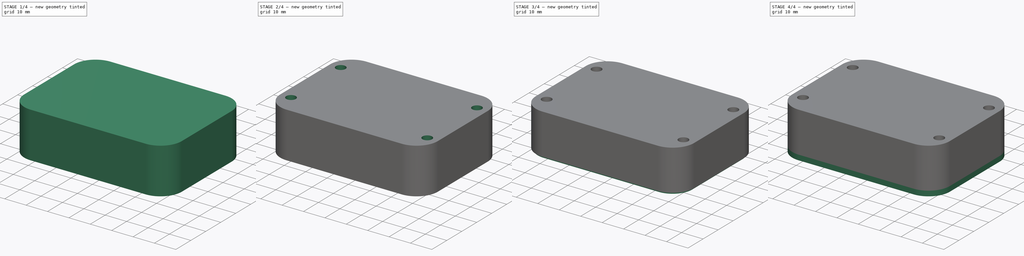
[diagram: build sequence overview — one tinted view per stage of 4, left to right]
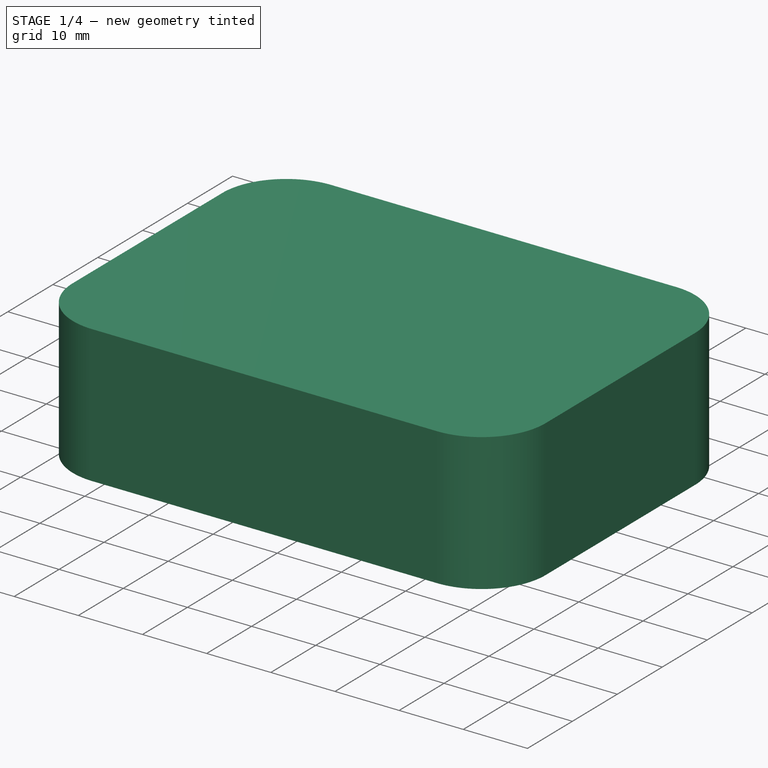
[diagram: stage 1 of 4 — iso view after this stage's code; geometry added in this stage tinted green]
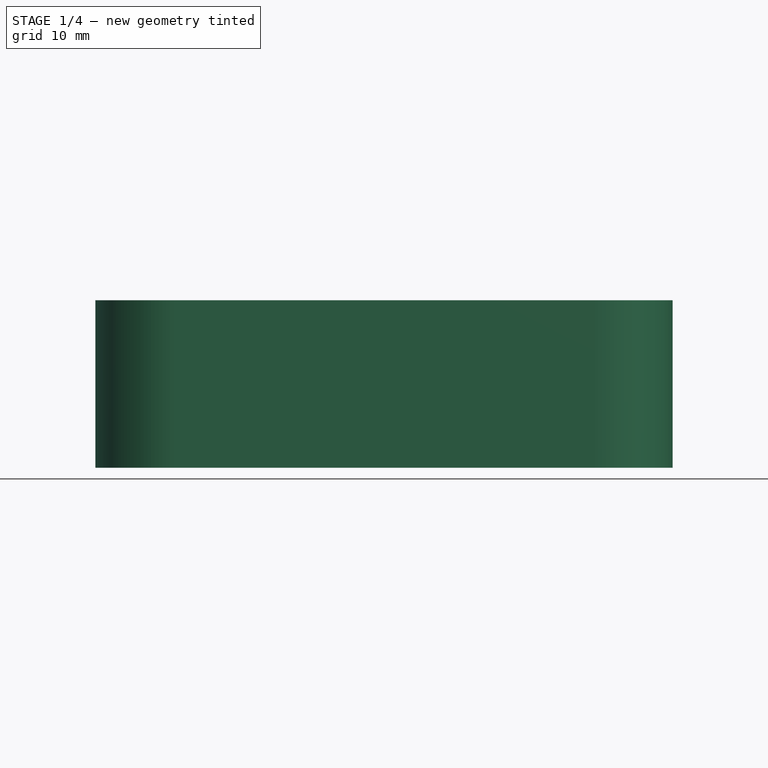
[diagram: stage 1 of 4 — front view after this stage's code; geometry added in this stage tinted green]
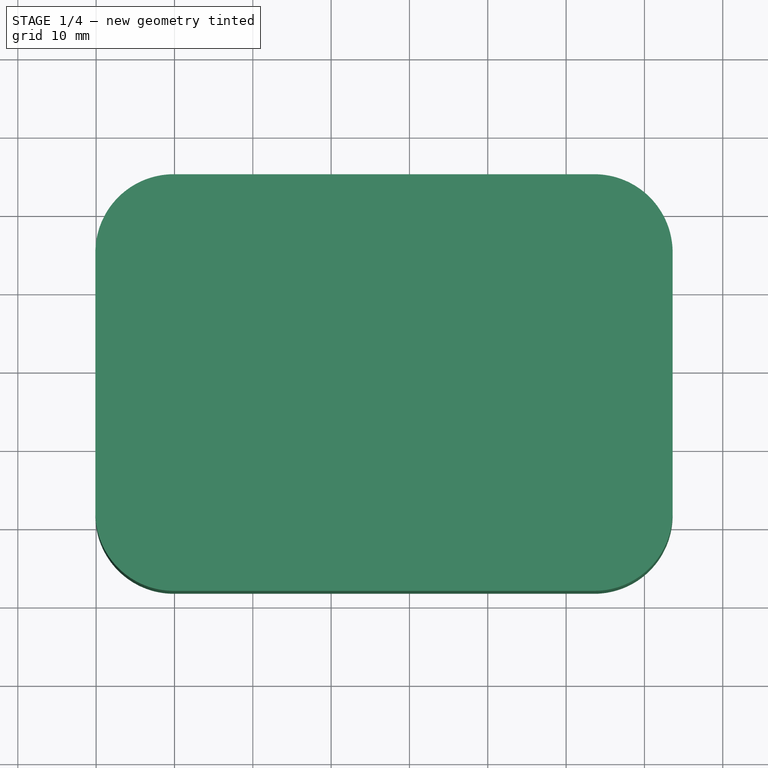
[diagram: stage 1 of 4 — top view after this stage's code; geometry added in this stage tinted green]
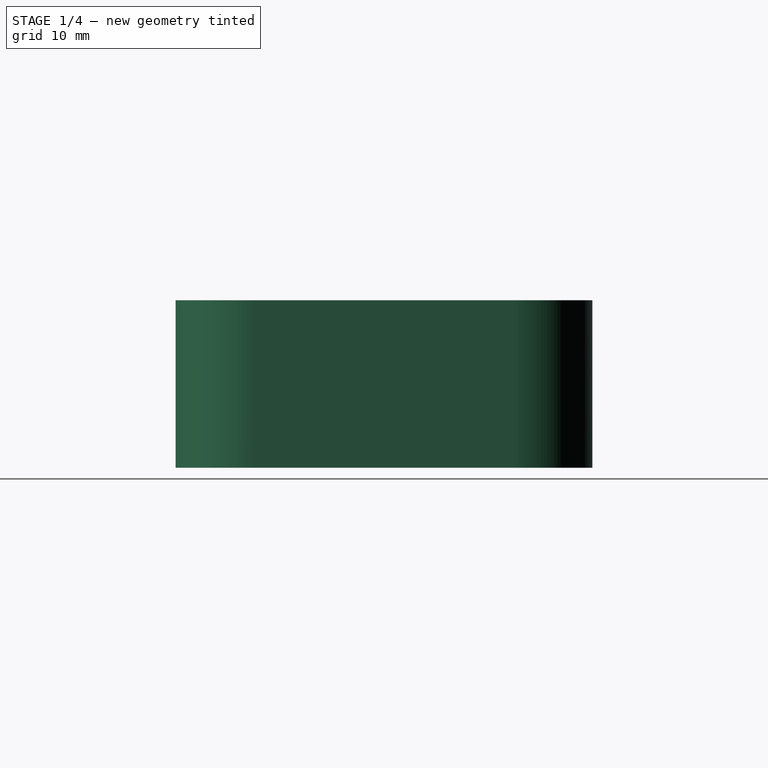
[diagram: stage 1 of 4 — right view after this stage's code; geometry added in this stage tinted green]
FCSTD DOCUMENT  (FreeCAD 0.19R24291 (Git))
Label: mail-to-telegram
License: All rights reserved
LicenseURL: http://en.wikipedia.org/wiki/All_rights_reserved
objects: Part::Feature×15, App::Link×9, App::Part×6, Sketcher::SketchObject×5, PartDesign::Plane×4, PartDesign::FeatureBase×3, PartDesign::Body×3, Part::FeaturePython×3, Part::Box×2, PartDesign::Pocket×2, PartDesign::CoordinateSystem×1, Part::Cut×1, Part::Fillet×1, PartDesign::Hole×1, PartDesign::Pad×1
note: 46 computed .brp shape members not serialized (recipe doc carries the construction recipe); baked Part::Feature solids carry a one-line shape summary decoded from their .brp

FEATURE [PartDesign::CoordinateSystem] Local_CS_e0a5
  AttacherType = Attacher::AttachEngine3D
FEATURE [Part::Feature] Pcb_e0a5
  Placement = pos=(-120,73.5,0) rot=(0,0,1;0rad)
  shape: bbox 53.5 x 46.5 x 1.6 mm, 23 faces (baked)
FEATURE [Sketcher::SketchObject] PCB_Sketch_e0a5
  FullyConstrained = false
  sketch-geometry (5):
    g0: LineSegment StartX=53.5 StartY=0 StartZ=0 EndX=53.5 EndY=-30.5 EndZ=0
    g1: LineSegment StartX=53.5 StartY=-30.5 StartZ=0 EndX=37.5 EndY=-46.5 EndZ=0
    g2: LineSegment StartX=37.5 StartY=-46.5 StartZ=0 EndX=0 EndY=-46.5 EndZ=0
    g3: LineSegment StartX=0 StartY=-46.5 StartZ=0 EndX=0 EndY=0 EndZ=0
    g4: LineSegment StartX=0 StartY=0 StartZ=0 EndX=53.5 EndY=0 EndZ=0
  constraints (5):
    c: Coincident(g2,g3)
    c: Coincident(g3,g4)
    c: Coincident(g1,g2)
    c: Coincident(g0,g1)
    c: Coincident(g0,g4)
FEATURE [Part::Feature] Shape  label="BT1_Keystone_2479_3xAAA_60BE3ADF"
  Placement = pos=(3,-39,-1.6) rot=(1,0,0;3.14159rad)
  shape: bbox 54.23 x 39.09 x 16.6 mm, 116 faces, 14 solids (baked)
FEATURE [Part::Feature] Shape001  label="R3_R_0603_1608Metric_60BE3A8B"
  Placement = pos=(28.8,-28.6,0) rot=(0,0,1;3.14159rad)
  shape: bbox 1.6 x 0.8 x 0.45 mm, 26 faces (baked)
FEATURE [Part::Feature] Part__Feature  label="pines"
  Placement = pos=(0,0,0) rot=(1,0,0;1.5708rad)
  shape: bbox 9 x 1 x 0.8602 mm, 18 faces (baked)
FEATURE [Part::Feature] Part__Feature001  label="cuerpo"
  Placement = pos=(-3,-1.75,0) rot=(0,0,1;0rad)
  shape: bbox 6 x 3.5 x 1.8 mm, 43 faces (baked)
FEATURE [Part::Feature] Part__Feature002  label="boton"
  Placement = pos=(-0.9,-0.63,0) rot=(0,0,1;0rad)
  shape: bbox 1.8 x 1.25 x 2 mm, 18 faces (baked)
FEATURE [App::Part] ASSEMBLY  label="SW1_ASSEMBLY_60BE3A44"
  Group = -> [Part__Feature,Part__Feature001,Part__Feature002]
  Origin = -> Origin008
  Placement = pos=(25,-33.5,0) rot=(0,0,1;3.14159rad)
FEATURE [Part::Feature] Shape002  label="C6_C_0603_1608Metric_60BE39BC"
  Placement = pos=(28.8375,-30.4,0) rot=(0,0,1;3.14159rad)
  shape: bbox 1.6 x 0.8 x 0.8 mm, 28 faces (baked)
FEATURE [Part::Feature] Shape003  label="U1_SOT_23_5_60BDE8CE"
  Placement = pos=(8,-32.4,0) rot=(0,0,1;0rad)
  shape: bbox 2.8 x 2.9 x 1.55 mm, 109 faces (baked)
FEATURE [Part::Feature] Shape004  label="J2_PinHeader_1x04_P254mm_Vertical_60BE024C"
  Placement = pos=(14,-6,-1.6) rot=(-0.707107,0.707107,0;3.14159rad)
  shape: bbox 10.16 x 2.54 x 11.54 mm, 100 faces (baked)
FEATURE [Part::Feature] Shape005  label="J1_PinHeader_1x05_P254mm_Vertical_60BE46CC"
  Placement = pos=(14,-2,-1.6) rot=(-0.707107,0.707107,0;3.14159rad)
  shape: bbox 12.7 x 2.54 x 11.54 mm, 124 faces (baked)
FEATURE [Part::Feature] Shape006  label="U2_ESP32-WROOM-32_60BDC9C3"
  Placement = pos=(42.5,-18,0) rot=(0,0,1;0rad)
  shape: bbox 18 x 25.5 x 3.1 mm, 751 faces (baked)
FEATURE [App::Link] R3_R_0603_1608Metric_60BE3A8B_ln_  label="R5_R_0603_1608Metric_60BDC924"
  LinkPlacement = pos=(30.8125,-22.4,0) rot=(0,0,1;0rad)
  LinkedObject = -> Shape001
  Placement = pos=(30.8125,-22.4,0) rot=(0,0,1;0rad)
FEATURE [App::Link] R3_R_0603_1608Metric_60BE3A8B_ln_001  label="R4_R_0603_1608Metric_60BDC913"
  LinkPlacement = pos=(36.9875,-30.4,0) rot=(0,0,1;0rad)
  LinkedObject = -> Shape001
  Placement = pos=(36.9875,-30.4,0) rot=(0,0,1;0rad)
FEATURE [App::Link] R3_R_0603_1608Metric_60BE3A8B_ln_002  label="R2_R_0603_1608Metric_60BDC8F1"
  LinkPlacement = pos=(9.05,-27.8125,0) rot=(0,0,-1;1.5708rad)
  LinkedObject = -> Shape001
  Placement = pos=(9.05,-27.8125,0) rot=(0,0,-1;1.5708rad)
FEATURE [App::Link] R3_R_0603_1608Metric_60BE3A8B_ln_003  label="R1_R_0603_1608Metric_60BDC8E0"
  LinkPlacement = pos=(7.3,-27.7875,0) rot=(0,0,1;1.5708rad)
  LinkedObject = -> Shape001
  Placement = pos=(7.3,-27.7875,0) rot=(0,0,1;1.5708rad)
FEATURE [Part::Feature] Shape007  label="J3_TerminalBlock_Phoenix_PT_15_3_35_H_1x03_P350mm_Horizontal_60BDC8CF"
  Placement = pos=(2.5,-4.5,-1.6) rot=(1,0,0;3.14159rad)
  shape: bbox 11.07 x 7.55 x 13.7 mm, 172 faces (baked)
FEATURE [App::Part] Bot_e0a5
  Group = -> [Shape,Shape004,Shape005,Shape007]
  Origin = -> Origin004
FEATURE [Part::Feature] Shape008  label="D1_D_0603_60BE43DD"
  Placement = pos=(30.725,-20.7,0) rot=(0,0,1;3.14159rad)
  shape: bbox 1.6 x 0.87 x 0.66 mm, 39 faces (baked)
FEATURE [App::Link] C6_C_0603_1608Metric_60BE39BC_ln_  label="C5_C_0603_1608Metric_60BDC843"
  LinkPlacement = pos=(30.6625,-11.1,0) rot=(0,0,1;3.14159rad)
  LinkedObject = -> Shape002
  Placement = pos=(30.6625,-11.1,0) rot=(0,0,1;3.14159rad)
FEATURE [App::Link] C6_C_0603_1608Metric_60BE39BC_ln_001  label="C4_C_0603_1608Metric_60BDC832"
  LinkPlacement = pos=(30.6625,-12.6,0) rot=(0,0,1;3.14159rad)
  LinkedObject = -> Shape002
  Placement = pos=(30.6625,-12.6,0) rot=(0,0,1;3.14159rad)
FEATURE [App::Link] C6_C_0603_1608Metric_60BE39BC_ln_002  label="C3_C_0603_1608Metric_60BDC821"
  LinkPlacement = pos=(11.8625,-31.5,0) rot=(0,0,1;0rad)
  LinkedObject = -> Shape002
  Placement = pos=(11.8625,-31.5,0) rot=(0,0,1;0rad)
FEATURE [App::Link] C6_C_0603_1608Metric_60BE39BC_ln_003  label="C2_C_0603_1608Metric_60BDC810"
  LinkPlacement = pos=(11.8625,-33.3,0) rot=(0,0,1;0rad)
  LinkedObject = -> Shape002
  Placement = pos=(11.8625,-33.3,0) rot=(0,0,1;0rad)
FEATURE [App::Link] C6_C_0603_1608Metric_60BE39BC_ln_004  label="C1_C_0603_1608Metric_60BDF2C4"
  LinkPlacement = pos=(4.4,-32.3875,0) rot=(0,0,-1;1.5708rad)
  LinkedObject = -> Shape002
  Placement = pos=(4.4,-32.3875,0) rot=(0,0,-1;1.5708rad)
FEATURE [App::Part] Top_e0a5
  Group = -> [Shape001,ASSEMBLY,Shape002,Shape003,Shape006,R3_R_0603_1608Metric_60BE3A8B_ln_,R3_R_0603_1608Metric_60BE3A8B_ln_001,R3_R_0603_1608Metric_60BE3A8B_ln_002,R3_R_0603_1608Metric_60BE3A8B_ln_003,Shape008,C6_C_0603_1608Metric_60BE39BC_ln_,C6_C_0603_1608Metric_60BE39BC_ln_001,C6_C_0603_1608Metric_60BE39BC_ln_002,C6_C_0603_1608Metric_60BE39BC_ln_003,C6_C_0603_1608Metric_60BE39BC_ln_004]
  Origin = -> Origin003
FEATURE [App::Part] Step_Models_e0a5
  Group = -> [Top_e0a5,Bot_e0a5]
  Origin = -> Origin002
FEATURE [Part::Feature] topTracks_e0a5
  Placement = pos=(-120,73.5,0.01) rot=(0,0,1;0rad)
  shape: bbox 52.59 x 44.79 x 0.04 mm, 130 faces, 0 solids (baked)
FEATURE [Part::Feature] botTracks_e0a5
  Placement = pos=(-120,73.5,-1.61) rot=(0,0,1;0rad)
  shape: bbox 52.49 x 45.38 x 0.04 mm, 46 faces, 0 solids (baked)
FEATURE [App::Part] Board_Geoms_e0a5
  Group = -> [Local_CS_e0a5,Pcb_e0a5,PCB_Sketch_e0a5,topTracks_e0a5,botTracks_e0a5]
  Origin = -> Origin
FEATURE [App::Part] Board_e0a5  label="mail-to-telegram"
  Group = -> [Board_Geoms_e0a5,Step_Models_e0a5]
  Origin = -> Origin001
FEATURE [Part::Box] Box  label="PCBBounding"
  AttacherType = Attacher::AttachEngine3D
  Height = 18.2
  Length = 53.7
  Placement = pos=(-0.1,-46.6,-14) rot=(0,0,1;0rad)
  Width = 50
FEATURE [Part::Box] Box001  label="BoxOutline"
  AttacherType = Attacher::AttachEngine3D
  Height = 21.4
  Length = 73.7
  Placement = pos=(-10.1,-48.2,-15.6) rot=(0,0,1;0rad)
  Width = 53.2
  expr: Height = <<PCBBounding>>.Height + 3.2mm
  expr: .Placement.Base.z = <<PCBBounding>>.Placement.Base.z - 1.6mm
  expr: Width = <<PCBBounding>>.Width + 3.2mm
  expr: Length = <<PCBBounding>>.Length + 20mm
  expr: .Placement.Base.y = <<PCBBounding>>.Placement.Base.y - 1.6mm
  expr: .Placement.Base.x = <<PCBBounding>>.Placement.Base.x - 10mm
FEATURE [Part::Cut] Cut
  Base = -> Box001
  Tool = -> Box
FEATURE [Part::Fillet] Fillet
  Base = -> Cut
  Edges = 4 edges r=10: [Edge1,Edge3,Edge6,Edge11]
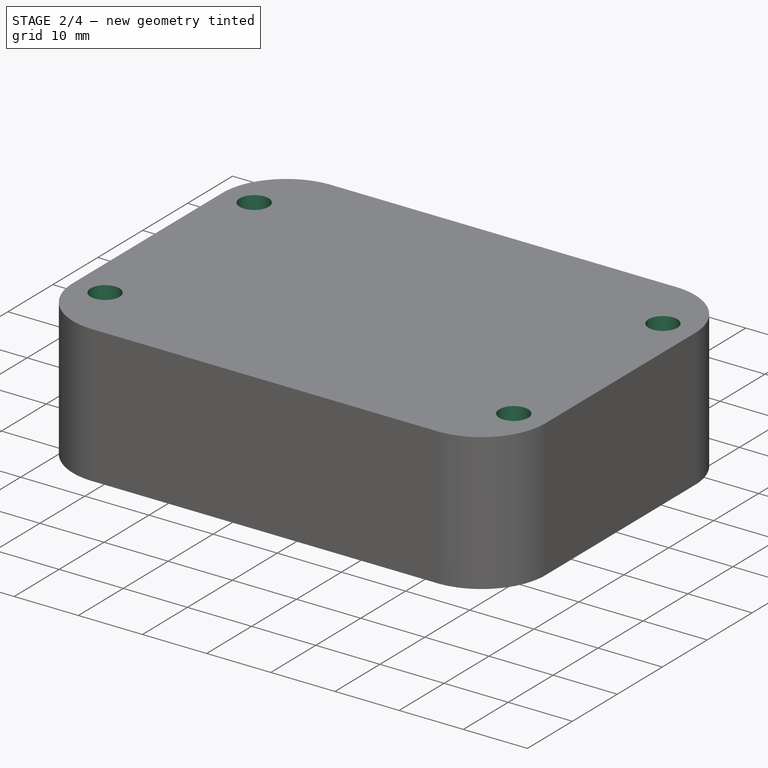
[diagram: stage 2 of 4 — iso view after this stage's code; geometry added in this stage tinted green]
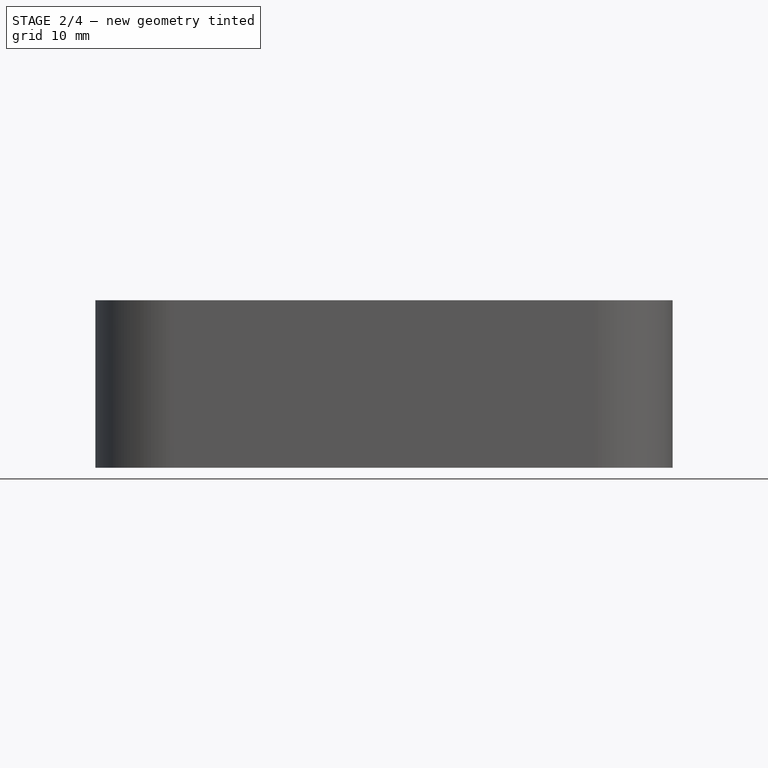
[diagram: stage 2 of 4 — front view after this stage's code; geometry added in this stage tinted green]
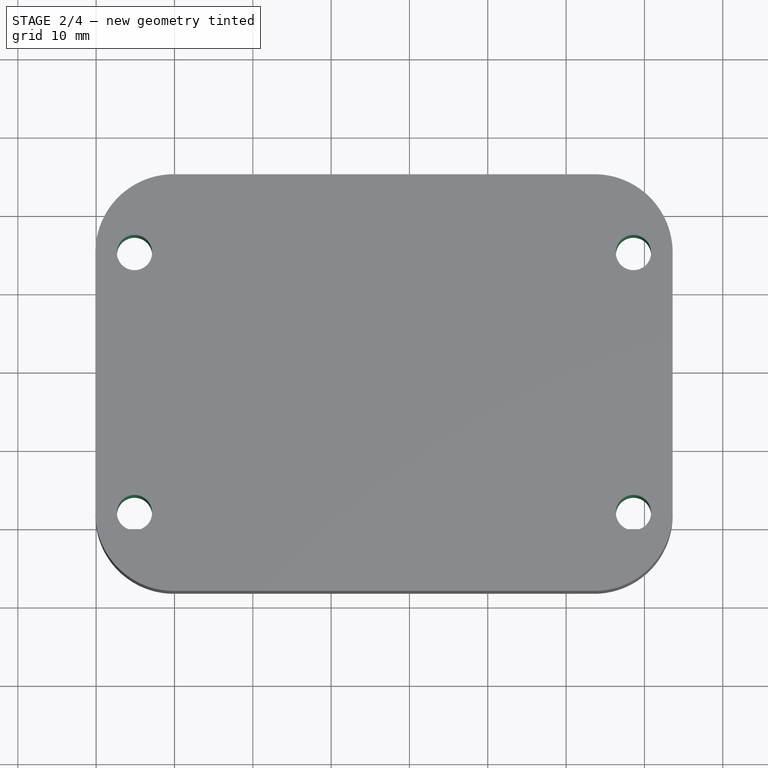
[diagram: stage 2 of 4 — top view after this stage's code; geometry added in this stage tinted green]
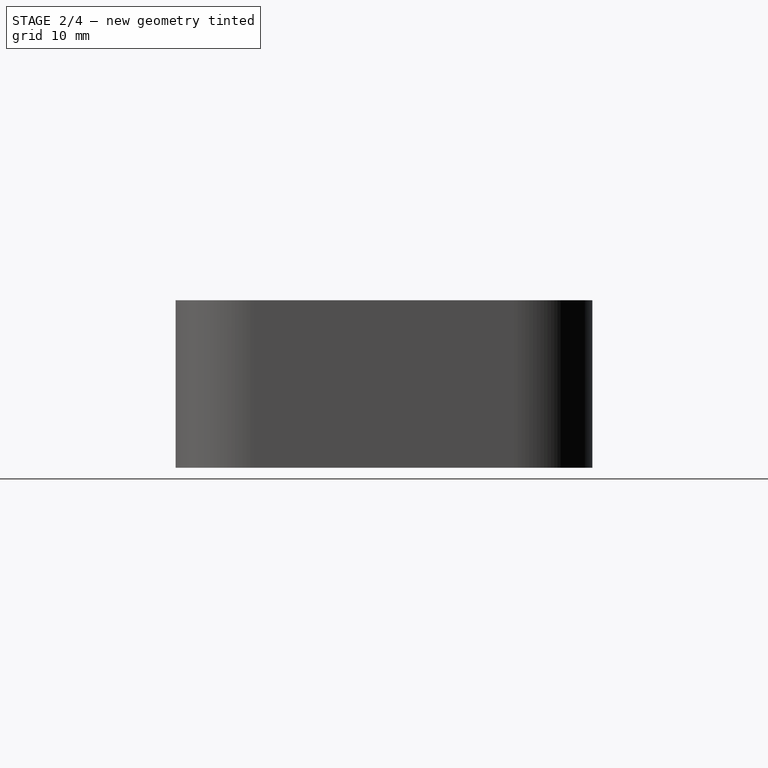
[diagram: stage 2 of 4 — right view after this stage's code; geometry added in this stage tinted green]
FEATURE [PartDesign::FeatureBase] BaseFeature
  BaseFeature = -> Fillet
FEATURE [PartDesign::Plane] DatumPlane
  Length = 104.707
  MapMode = 5
  Placement = pos=(0,0,5.8) rot=(0,0,1;0rad)
  ResizeMode = 0
  Support = -> [BaseFeature]
  Width = 89.3065
FEATURE [Sketcher::SketchObject] Sketch
  ExternalGeometry = -> [BaseFeature]
  FullyConstrained = true
  MapMode = 5
  Placement = pos=(0,0,5.8) rot=(0,0,1;0rad)
  Support = -> [BaseFeature]
  sketch-geometry (6):
    g0: Circle CenterX=-5.1 CenterY=-5 CenterZ=0 NormalX=0 NormalY=0 NormalZ=1 AngleXU=0 Radius=2
    g1: LineSegment StartX=-10.1 StartY=-21.6 StartZ=0 EndX=0 EndY=-21.6 EndZ=0
    g2: Circle CenterX=-5.1 CenterY=-38.2 CenterZ=0 NormalX=0 NormalY=0 NormalZ=1 AngleXU=0 Radius=2
    g3: LineSegment StartX=26.75 StartY=5 StartZ=0 EndX=26.75 EndY=0 EndZ=0
    g4: Circle CenterX=58.6 CenterY=-5 CenterZ=0 NormalX=0 NormalY=0 NormalZ=1 AngleXU=0 Radius=2
    g5: Circle CenterX=58.6 CenterY=-38.2 CenterZ=0 NormalX=0 NormalY=0 NormalZ=1 AngleXU=0 Radius=2
  constraints (14):
    c: Symmetric(g-3,g-3,g0)
    c: Diameter(g0) = 4
    c: Horizontal(g1)
    c: Symmetric(g-4,g-4,g1)
    c: PointOnObject(g1,g-2)
    c: Diameter(g2) = 4
    c: Symmetric(g2,g0,g1)
    c: PointOnObject(g3,g-1)
    c: Vertical(g3)
    c: Symmetric(g-5,g-5,g3)
    c: Diameter(g4) = 4
    c: Diameter(g5) = 4
    c: Symmetric(g4,g0,g3)
    c: Symmetric(g5,g2,g3)
FEATURE [PartDesign::Hole] Hole
  BaseFeature = -> BaseFeature
  Depth = 25
  DepthType = 1
  Diameter = 4.5
  DrillForDepth = false
  DrillPoint = 1
  DrillPointAngle = 118
  HoleCutCountersinkAngle = 90
  HoleCutCustomValues = false
  HoleCutDepth = 0
  HoleCutDiameter = 6.1
  HoleCutType = 0
  ModelActualThread = false
  Profile = -> Sketch
  Tapered = false
  TaperedAngle = 90
  ThreadAngle = 60
  ThreadClass = 0
  ThreadCutOffInner = 0.0757772
  ThreadCutOffOuter = 0.151554
  ThreadDirection = 0
  ThreadFit = 0
  ThreadPitch = 0.7
  ThreadSize = 11
  ThreadType = 1
  Threaded = false
FEATURE [PartDesign::Plane] DatumPlane001
  AttachmentOffset = pos=(0,0,-1.6) rot=(0,0,1;0rad)
  Length = 104.707
  MapMode = 5
  Placement = pos=(0,0,-14) rot=(1,0,0;3.14159rad)
  ResizeMode = 0
  Support = -> [Hole]
  Width = 89.3065
FEATURE [PartDesign::Body] Body
  BaseFeature = -> Fillet
  Group = -> [BaseFeature,DatumPlane,Sketch,Hole,DatumPlane001]
  Origin = -> Origin009
  Tip = -> Hole
FEATURE [Part::FeaturePython] Slice  # WARN: FeaturePython — macro-defined, semantics opaque (R4)
  Base = -> Hole
  Mode = 1
  Tolerance = 0
  Tools = -> [DatumPlane001]
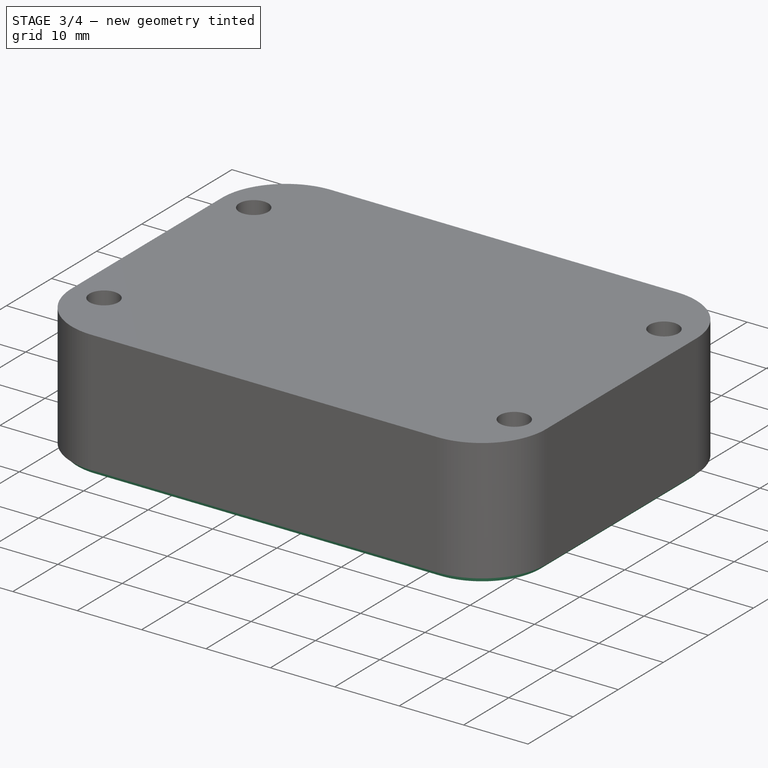
[diagram: stage 3 of 4 — iso view after this stage's code; geometry added in this stage tinted green]
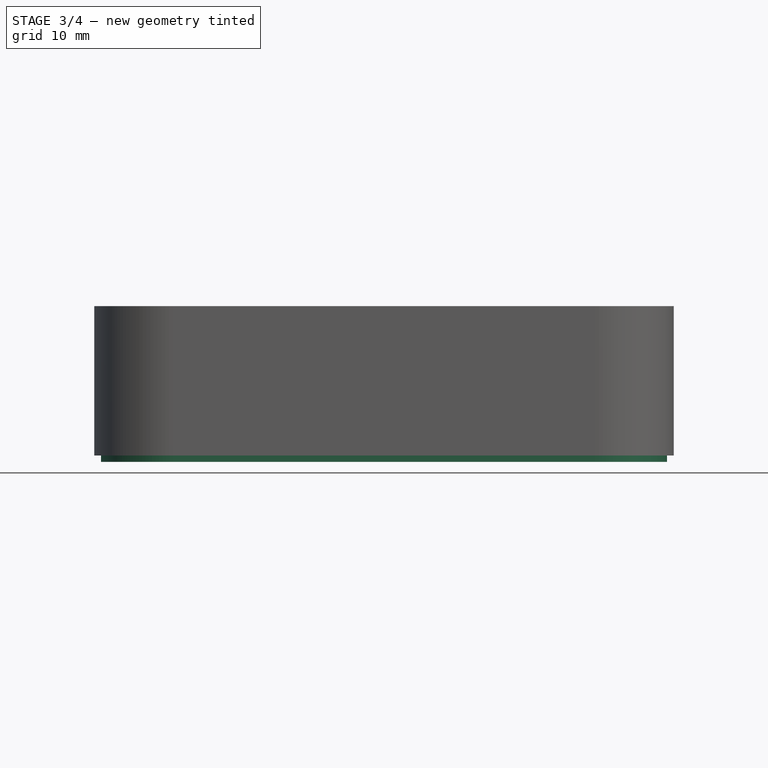
[diagram: stage 3 of 4 — front view after this stage's code; geometry added in this stage tinted green]
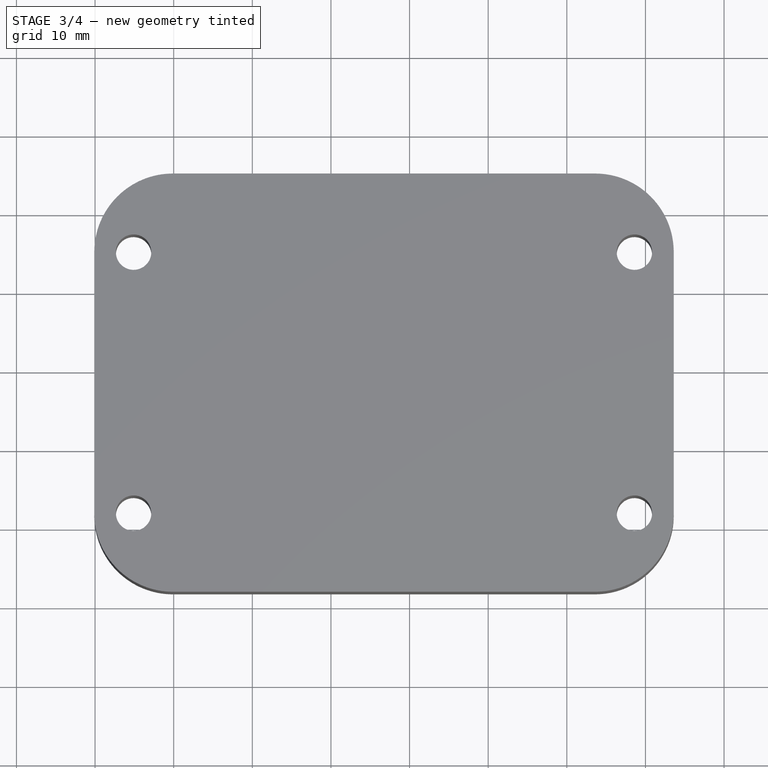
[diagram: stage 3 of 4 — top view after this stage's code; geometry added in this stage tinted green]
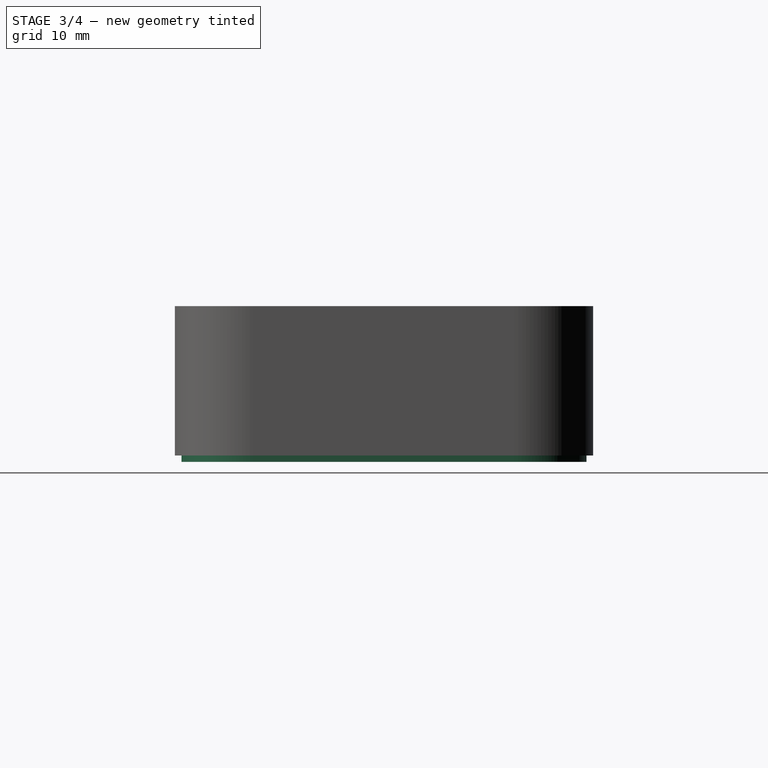
[diagram: stage 3 of 4 — right view after this stage's code; geometry added in this stage tinted green]
FEATURE [Part::FeaturePython] Slice_child0  label="Slice.0"  # WARN: FeaturePython — macro-defined, semantics opaque (R4)
  Base = -> Slice
  FilterType = 1
  Invert = false
  OverrideMaxVal = 0
  WindowFrom = 80
  WindowTo = 100
  items = 0
FEATURE [PartDesign::FeatureBase] BaseFeature001
  BaseFeature = -> Slice_child0
FEATURE [PartDesign::Body] Body002  label="Lid"
  BaseFeature = -> Slice_child1
  Group = -> [BaseFeature002,DatumPlane002,Sketch001,Pad]
  Origin = -> Origin011
  Tip = -> Pad
FEATURE [PartDesign::Plane] DatumPlane003
  Length = 104.707
  MapMode = 5
  Placement = pos=(0,0,-14) rot=(1,0,0;3.14159rad)
  ResizeMode = 0
  Support = -> [BaseFeature001]
  Width = 89.3065
FEATURE [Sketcher::SketchObject] Sketch002
  ExternalGeometry = -> [BaseFeature001]
  FullyConstrained = true
  MapMode = 5
  Placement = pos=(0,0,-14) rot=(1,0,0;3.14159rad)
  Support = -> [BaseFeature001]
  sketch-geometry (16):
    g0: LineSegment StartX=-0.1 StartY=48.2 StartZ=0 EndX=53.6 EndY=48.2 EndZ=0
    g1: LineSegment StartX=63.6 StartY=38.2 StartZ=0 EndX=63.6 EndY=5 EndZ=0
    g2: LineSegment StartX=53.6 StartY=-5 StartZ=0 EndX=-0.1 EndY=-5 EndZ=0
    g3: LineSegment StartX=-10.1 StartY=5 StartZ=0 EndX=-10.1 EndY=38.2 EndZ=0
    g4: ArcOfCircle CenterX=-0.1 CenterY=38.2 CenterZ=0 NormalX=0 NormalY=0 NormalZ=1 AngleXU=0 Radius=10 StartAngle=1.5708 EndAngle=3.14159
    g5: ArcOfCircle CenterX=-0.1 CenterY=5 CenterZ=0 NormalX=0 NormalY=0 NormalZ=1 AngleXU=0 Radius=10 StartAngle=3.14159 EndAngle=4.71239
    g6: ArcOfCircle CenterX=53.6 CenterY=5 CenterZ=0 NormalX=0 NormalY=0 NormalZ=1 AngleXU=0 Radius=10 StartAngle=4.71239 EndAngle=6.28319
    g7: ArcOfCircle CenterX=53.6 CenterY=38.2 CenterZ=0 NormalX=0 NormalY=0 NormalZ=1 AngleXU=0 Radius=10 StartAngle=0 EndAngle=1.5708
    g8: LineSegment StartX=-0.1 StartY=47.35 StartZ=0 EndX=53.6 EndY=47.35 EndZ=0
    g9: LineSegment StartX=62.75 StartY=38.2 StartZ=0 EndX=62.75 EndY=5 EndZ=0
    g10: LineSegment StartX=53.6 StartY=-4.15 StartZ=0 EndX=-0.1 EndY=-4.15 EndZ=0
    g11: LineSegment StartX=-9.25 StartY=5 StartZ=0 EndX=-9.25 EndY=38.2 EndZ=0
    g12: ArcOfCircle CenterX=-0.1 CenterY=38.2 CenterZ=0 NormalX=0 NormalY=0 NormalZ=1 AngleXU=0 Radius=9.15 StartAngle=1.5708 EndAngle=3.14159
    g13: ArcOfCircle CenterX=-0.1 CenterY=5 CenterZ=0 NormalX=0 NormalY=0 NormalZ=1 AngleXU=0 Radius=9.15 StartAngle=3.14159 EndAngle=4.71239
    g14: ArcOfCircle CenterX=53.6 CenterY=5 CenterZ=0 NormalX=0 NormalY=0 NormalZ=1 AngleXU=0 Radius=9.15 StartAngle=4.71239 EndAngle=6.28319
    g15: ArcOfCircle CenterX=53.6 CenterY=38.2 CenterZ=0 NormalX=0 NormalY=0 NormalZ=1 AngleXU=0 Radius=9.15 StartAngle=0 EndAngle=1.5708
  constraints (36):
    c: Horizontal(g0)
    c: Horizontal(g2)
    c: Vertical(g1)
    c: Vertical(g3)
    c: Tangent(g0,g4) = 1.5708
    c: Tangent(g3,g4) = 1.5708
    c: Tangent(g2,g5) = 1.5708
    c: Tangent(g3,g5) = 1.5708
    c: Tangent(g2,g6) = 1.5708
    c: Tangent(g1,g6) = 1.5708
    c: Tangent(g0,g7) = 1.5708
    c: Tangent(g1,g7) = 1.5708
    c: Equal(g6,g5)
    c: Equal(g5,g4)
    c: Equal(g4,g7)
    c: Coincident(g-3,g4)
    c: Coincident(g-4,g6)
    c: Equal(g-3,g4)
    c: Horizontal(g8)
    c: Horizontal(g10)
    c: Vertical(g9)
    c: Vertical(g11)
    c: Tangent(g8,g12) = 1.5708
    c: Tangent(g11,g12) = 1.5708
    c: Tangent(g10,g13) = 1.5708
    c: Tangent(g11,g13) = 1.5708
    c: Tangent(g10,g14) = 1.5708
    c: Tangent(g9,g14) = 1.5708
    c: Tangent(g8,g15) = 1.5708
    c: Tangent(g9,g15) = 1.5708
    c: Equal(g14,g13)
    c: Equal(g13,g12)
    c: Equal(g12,g15)
    c: Coincident(g12,g4)
    c: Coincident(g14,g6)
    c: DistanceY(g8,g0) = 0.85
FEATURE [PartDesign::Pocket] Pocket
  BaseFeature = -> BaseFeature001
  Length = 0.8
  Length2 = 100
  Profile = -> Sketch002
  Type = 0
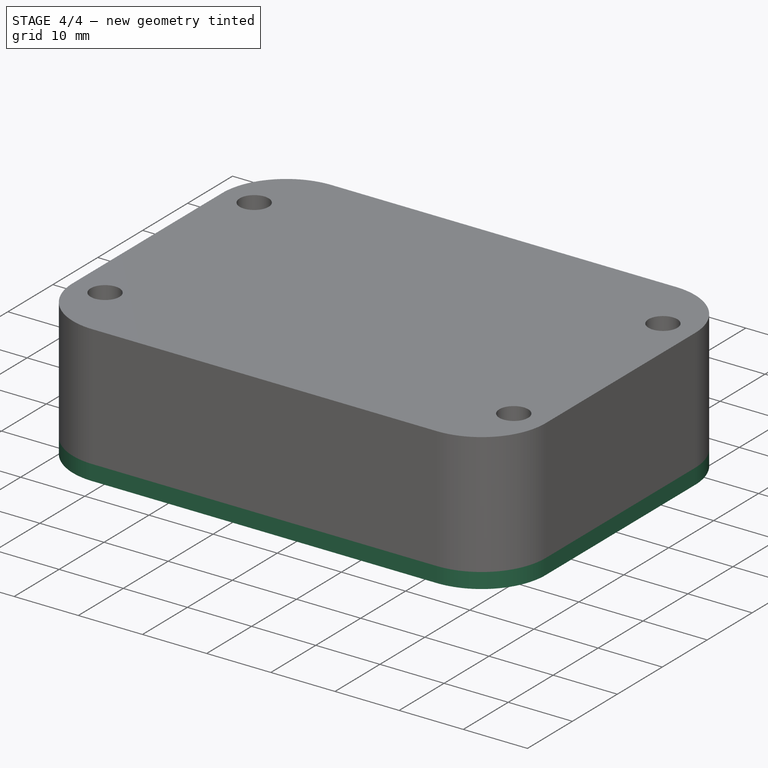
[diagram: stage 4 of 4 — iso view after this stage's code; geometry added in this stage tinted green]
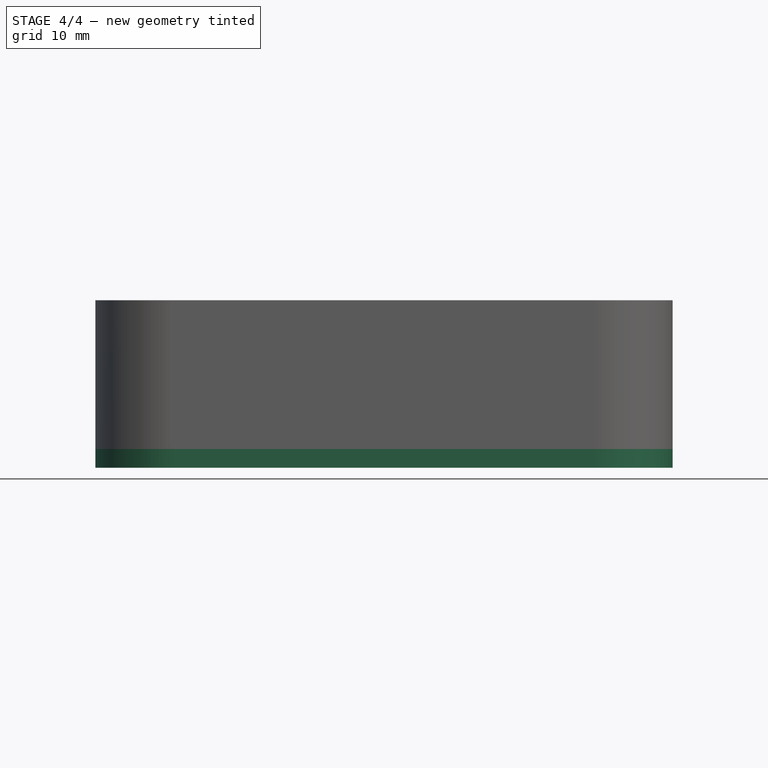
[diagram: stage 4 of 4 — front view after this stage's code; geometry added in this stage tinted green]
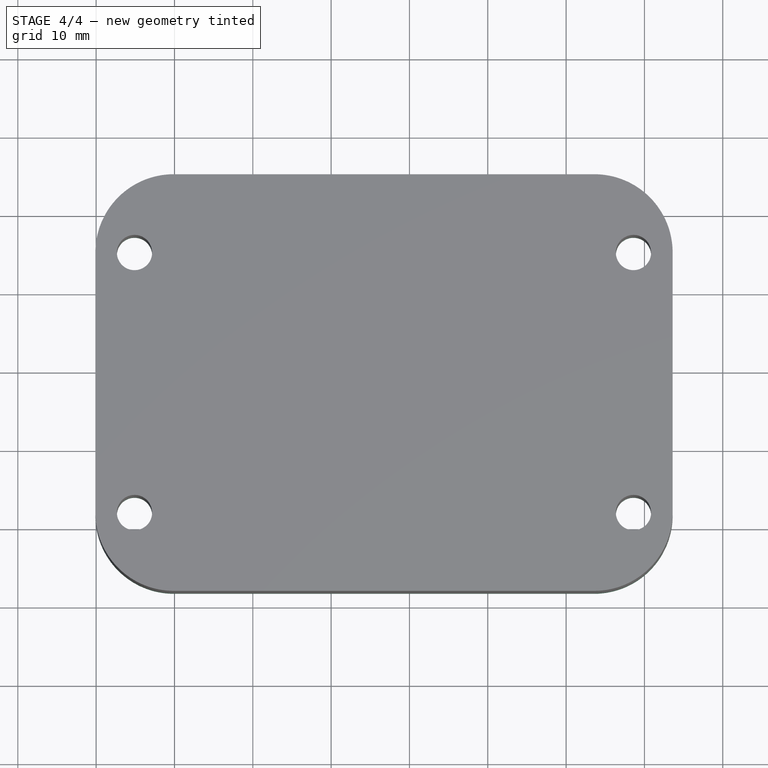
[diagram: stage 4 of 4 — top view after this stage's code; geometry added in this stage tinted green]
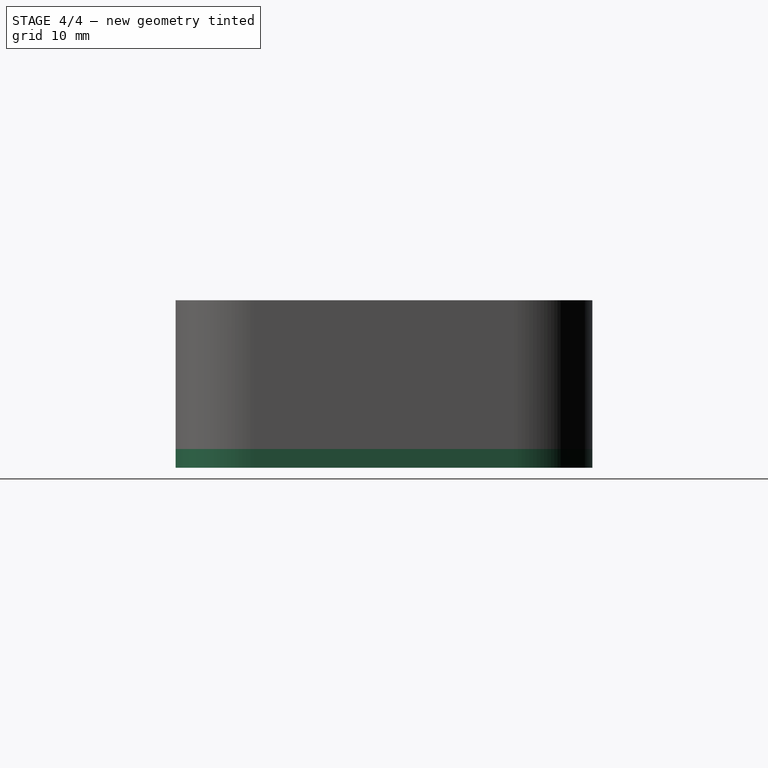
[diagram: stage 4 of 4 — right view after this stage's code; geometry added in this stage tinted green]
FEATURE [Part::FeaturePython] Slice_child1  label="Slice.1"  # WARN: FeaturePython — macro-defined, semantics opaque (R4)
  Base = -> Slice
  FilterType = 1
  Invert = false
  OverrideMaxVal = 0
  WindowFrom = 80
  WindowTo = 100
  items = 1
FEATURE [PartDesign::FeatureBase] BaseFeature002
  BaseFeature = -> Slice_child1
FEATURE [PartDesign::Plane] DatumPlane002
  Length = 104.707
  MapMode = 5
  Placement = pos=(0,0,-14) rot=(0,0,1;0rad)
  ResizeMode = 0
  Support = -> [BaseFeature002]
  Width = 89.3065
FEATURE [Sketcher::SketchObject] Sketch001
  ExternalGeometry = -> [BaseFeature002]
  FullyConstrained = true
  MapMode = 5
  Placement = pos=(0,0,-14) rot=(0,0,1;0rad)
  Support = -> [DatumPlane002]
  sketch-geometry (16):
    g0: LineSegment StartX=-0.1 StartY=5 StartZ=0 EndX=53.6 EndY=5 EndZ=0
    g1: LineSegment StartX=63.6 StartY=-5 StartZ=0 EndX=63.6 EndY=-38.2 EndZ=0
    g2: LineSegment StartX=53.6 StartY=-48.2 StartZ=0 EndX=-0.1 EndY=-48.2 EndZ=0
    g3: LineSegment StartX=-10.1 StartY=-38.2 StartZ=0 EndX=-10.1 EndY=-5 EndZ=0
    g4: ArcOfCircle CenterX=-0.1 CenterY=-5 CenterZ=0 NormalX=0 NormalY=0 NormalZ=1 AngleXU=0 Radius=10 StartAngle=1.5708 EndAngle=3.14159
    g5: ArcOfCircle CenterX=53.6 CenterY=-5 CenterZ=0 NormalX=0 NormalY=0 NormalZ=1 AngleXU=0 Radius=10 StartAngle=0 EndAngle=1.5708
    g6: ArcOfCircle CenterX=53.6 CenterY=-38.2 CenterZ=0 NormalX=0 NormalY=0 NormalZ=1 AngleXU=0 Radius=10 StartAngle=4.71239 EndAngle=6.28319
    g7: ArcOfCircle CenterX=-0.1 CenterY=-38.2 CenterZ=0 NormalX=0 NormalY=0 NormalZ=1 AngleXU=0 Radius=10 StartAngle=3.14159 EndAngle=4.71239
    g8: LineSegment StartX=-0.1 StartY=4.25 StartZ=0 EndX=53.6 EndY=4.25 EndZ=0
    g9: LineSegment StartX=62.85 StartY=-5 StartZ=0 EndX=62.85 EndY=-38.2 EndZ=0
    g10: LineSegment StartX=53.6 StartY=-47.45 StartZ=0 EndX=-0.1 EndY=-47.45 EndZ=0
    g11: LineSegment StartX=-9.35 StartY=-38.2 StartZ=0 EndX=-9.35 EndY=-5 EndZ=0
    g12: ArcOfCircle CenterX=-0.1 CenterY=-5 CenterZ=0 NormalX=0 NormalY=0 NormalZ=1 AngleXU=0 Radius=9.25 StartAngle=1.5708 EndAngle=3.14159
    g13: ArcOfCircle CenterX=53.6 CenterY=-5 CenterZ=0 NormalX=0 NormalY=0 NormalZ=1 AngleXU=0 Radius=9.25 StartAngle=0 EndAngle=1.5708
    g14: ArcOfCircle CenterX=53.6 CenterY=-38.2 CenterZ=0 NormalX=0 NormalY=0 NormalZ=1 AngleXU=0 Radius=9.25 StartAngle=4.71239 EndAngle=6.28319
    g15: ArcOfCircle CenterX=-0.1 CenterY=-38.2 CenterZ=0 NormalX=0 NormalY=0 NormalZ=1 AngleXU=0 Radius=9.25 StartAngle=3.14159 EndAngle=4.71239
  constraints (36):
    c: Horizontal(g0)
    c: Horizontal(g2)
    c: Vertical(g1)
    c: Vertical(g3)
    c: Tangent(g3,g4) = 1.5708
    c: Tangent(g0,g4) = 1.5708
    c: Tangent(g0,g5) = 1.5708
    c: Tangent(g1,g5) = 1.5708
    c: Tangent(g2,g6) = 1.5708
    c: Tangent(g1,g6) = 1.5708
    c: Tangent(g3,g7) = 1.5708
    c: Tangent(g2,g7) = 1.5708
    c: Equal(g4,g-3)
    c: Equal(g-3,g7)
    c: Equal(g7,g6)
    c: Equal(g6,g5)
    c: Coincident(g4,g-3)
    c: Coincident(g-4,g6)
    c: Horizontal(g8)
    c: Horizontal(g10)
    c: Vertical(g9)
    c: Vertical(g11)
    c: Tangent(g11,g12) = 1.5708
    c: Tangent(g8,g12) = 1.5708
    c: Tangent(g8,g13) = 1.5708
    c: Tangent(g9,g13) = 1.5708
    c: Tangent(g10,g14) = 1.5708
    c: Tangent(g9,g14) = 1.5708
    c: Tangent(g11,g15) = 1.5708
    c: Tangent(g10,g15) = 1.5708
    c: Equal(g15,g14)
    c: Equal(g14,g13)
    c: Equal(g12,g13)
    c: Coincident(g4,g12)
    c: Coincident(g14,g6)
    c: DistanceY(g8,g0) = 0.75
FEATURE [PartDesign::Pad] Pad
  BaseFeature = -> BaseFeature002
  Direction = (1,1,1)
  Length = 0.8
  Length2 = 100
  Profile = -> Sketch001
  Type = 0
FEATURE [Sketcher::SketchObject] Sketch003
  FullyConstrained = true
  MapMode = 5
  Placement = pos=(0,5,0) rot=(0,0.707107,0.707107;3.14159rad)
  Support = -> [Pocket]
  sketch-geometry (5):
    g0: ArcOfCircle CenterX=-9 CenterY=-4.7 CenterZ=0 NormalX=0 NormalY=0 NormalZ=1 AngleXU=0 Radius=2.5 StartAngle=1.5708 EndAngle=4.71239
    g1: ArcOfCircle CenterX=-3 CenterY=-4.7 CenterZ=0 NormalX=0 NormalY=0 NormalZ=1 AngleXU=0 Radius=2.5 StartAngle=4.71239 EndAngle=7.85398
    g2: LineSegment StartX=-9 StartY=-7.2 StartZ=0 EndX=-3 EndY=-7.2 EndZ=0
    g3: LineSegment StartX=-9 StartY=-2.2 StartZ=0 EndX=-3 EndY=-2.2 EndZ=0
    g4: GeomPoint X=-6 Y=-2.2 Z=0
  constraints (11):
    c: Tangent(g0,g3) = 1.5708
    c: Tangent(g0,g2) = -1.5708
    c: Tangent(g2,g1) = -1.5708
    c: Tangent(g3,g1) = 1.5708
    c: Horizontal(g2)
    c: Equal(g0,g1)
    c: DistanceY(g1,g1) = 5
    c: DistanceX(g0,g1) = 6
    c: DistanceY(g1,g-1) = 2.2
    c: Symmetric(g1,g0,g4)
    c: DistanceX(g4,g-1) = 6
FEATURE [PartDesign::Pocket] Pocket001
  BaseFeature = -> Pocket
  Length = 5
  Length2 = 100
  Profile = -> Sketch003
  Type = 2
FEATURE [PartDesign::Body] Body001  label="Enclosure"
  BaseFeature = -> Slice_child0
  Group = -> [BaseFeature001,DatumPlane003,Sketch002,Pocket,Sketch003,Pocket001]
  Origin = -> Origin010
  Tip = -> Pocket001
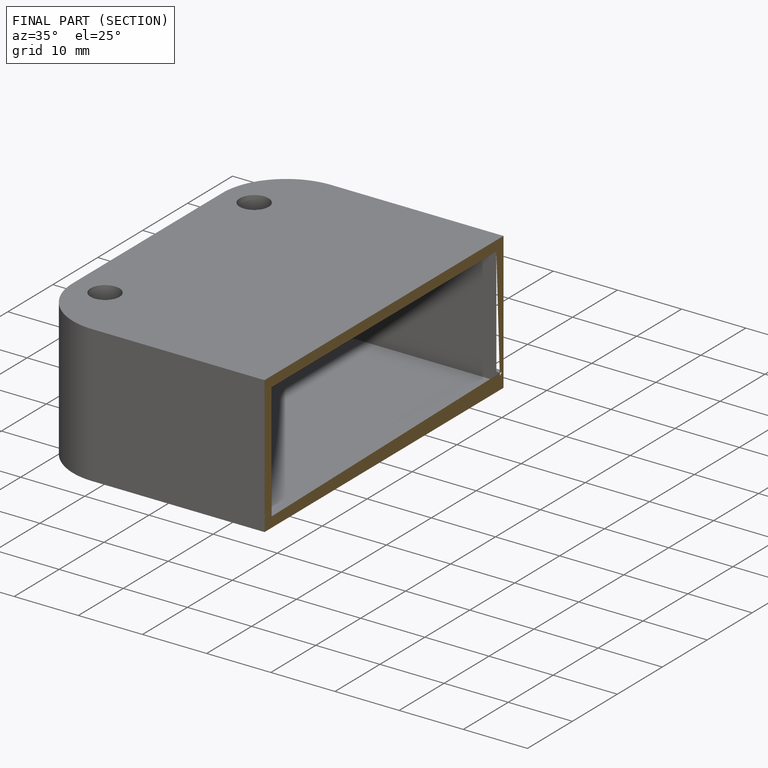
[diagram: finished part — half-section view (interior)]
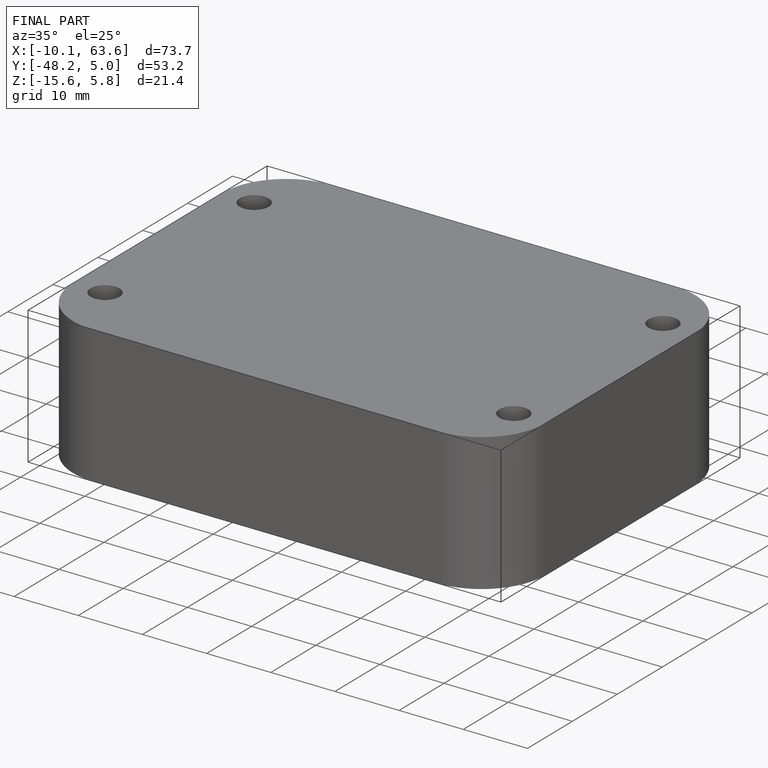
[diagram: finished part — iso view with bounding-box wireframe]
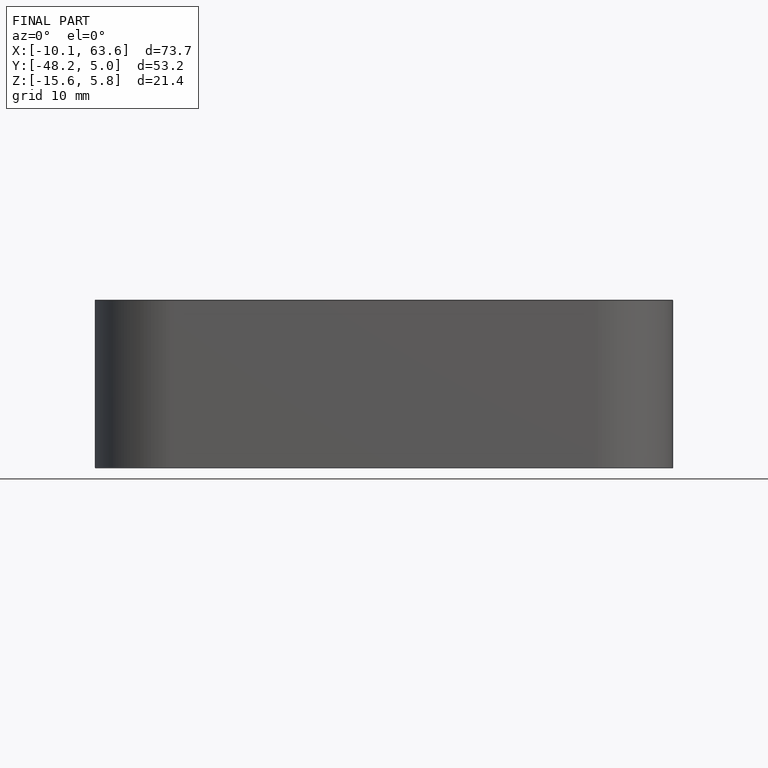
[diagram: finished part — front view with bounding-box wireframe]
